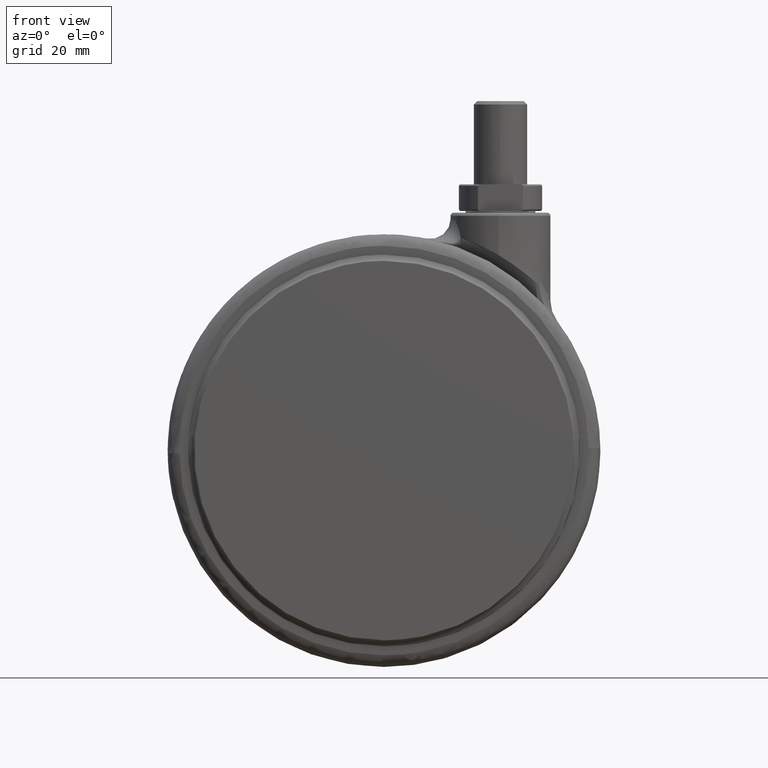
[diagram: clean part render]
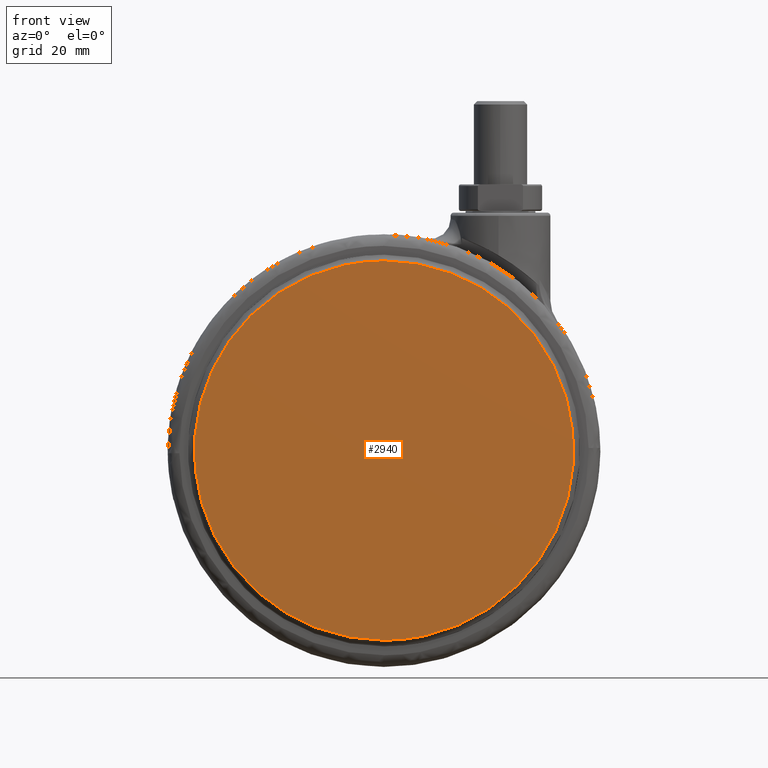
[diagram: same view with one face highlighted and labeled with its STEP entity id]
A machine part, front view. The second image highlights one B-rep face of the part: STEP entity #2940.
In plain terms, the highlighted face is a freeform B-spline surface patch.
Its self-contained STEP definition (entity closure, byte-faithful):
#2869=CARTESIAN_POINT('',(-97.681094386941609,-25.0,-8.805700220954234));
#2870=CARTESIAN_POINT('',(-97.681094386941623,-25.0,-134.194302836764110));
#2871=CARTESIAN_POINT('',(27.681093367726529,-25.0,-8.805700220954234));
#2872=CARTESIAN_POINT('',(27.681093367726529,-25.0,-134.194302836764110));
#2873=B_SPLINE_SURFACE_WITH_KNOTS('',1,1,((#2869,#2871),(#2870,#2872)),.UNSPECIFIED.,.F.,.F.,.U.,(2,2),(2,2),(0.0,125.388602615809900),(0.0,125.362187754668200),.UNSPECIFIED.);
#2874=CARTESIAN_POINT('',(-91.838057314910145,-24.999999999281521,-67.206372084830178));
#2875=VERTEX_POINT('',#2874);
#2876=CARTESIAN_POINT('',(-35.0,-24.999999999999989,-14.500000000000110));
#2877=VERTEX_POINT('',#2876);
#2878=CARTESIAN_POINT('',(-91.838057314910145,-24.999999999281521,-67.206372084830193));
#2879=CARTESIAN_POINT('',(-87.856542794829352,-24.999999999640746,-14.499999999997772));
#2880=CARTESIAN_POINT('',(-35.0,-24.999999999999989,-14.500000000000110));
#2888=(BOUNDED_CURVE()B_SPLINE_CURVE(2,(#2878,#2879,#2880),.UNSPECIFIED.,.F.,.U.)B_SPLINE_CURVE_WITH_KNOTS((3,3),(0.763129840737874,1.0),.UNSPECIFIED.)CURVE()GEOMETRIC_REPRESENTATION_ITEM()RATIONAL_B_SPLINE_CURVE((0.970850634526754,0.722489346451443,1.0))REPRESENTATION_ITEM(''));
#2889=EDGE_CURVE('',#2875,#2877,#2888,.T.);
#2890=ORIENTED_EDGE('',*,*,#2889,.F.);
#2891=CARTESIAN_POINT('',(-35.0,-25.0,-128.500000000000000));
#2892=VERTEX_POINT('',#2891);
#2893=CARTESIAN_POINT('',(-35.0,-25.0,-128.500000000000000));
#2894=CARTESIAN_POINT('',(-92.000000000028137,-24.999999999666873,-128.499999999997900));
#2895=CARTESIAN_POINT('',(-92.000000000058463,-24.999999999307640,-71.499999999995623));
#2896=CARTESIAN_POINT('',(-92.000000000059615,-24.999999999294094,-69.350132047773400));
#2897=CARTESIAN_POINT('',(-91.838057314910145,-24.999999999281521,-67.206372084830193));
#2905=(BOUNDED_CURVE()B_SPLINE_CURVE(2,(#2893,#2894,#2895,#2896,#2897),.UNSPECIFIED.,.F.,.U.)B_SPLINE_CURVE_WITH_KNOTS((3,2,3),(0.500000000000000,0.750000000000000,0.763129840737874),.UNSPECIFIED.)CURVE()GEOMETRIC_REPRESENTATION_ITEM()RATIONAL_B_SPLINE_CURVE((1.0,0.707106781186547,1.0,0.984617434735105,0.970850634526754))REPRESENTATION_ITEM(''));
#2906=EDGE_CURVE('',#2892,#2875,#2905,.T.);
#2907=ORIENTED_EDGE('',*,*,#2906,.F.);
#2908=CARTESIAN_POINT('',(21.838057314910149,-24.999999999281521,-75.793627915169822));
#2909=VERTEX_POINT('',#2908);
#2910=CARTESIAN_POINT('',(21.838057314910149,-24.999999999281521,-75.793627915169822));
#2911=CARTESIAN_POINT('',(17.856542794829359,-24.999999999640764,-128.500000000002300));
#2912=CARTESIAN_POINT('',(-35.0,-25.0,-128.500000000000000));
#2920=(BOUNDED_CURVE()B_SPLINE_CURVE(2,(#2910,#2911,#2912),.UNSPECIFIED.,.F.,.U.)B_SPLINE_CURVE_WITH_KNOTS((3,3),(0.263129840737873,0.500000000000000),.UNSPECIFIED.)CURVE()GEOMETRIC_REPRESENTATION_ITEM()RATIONAL_B_SPLINE_CURVE((0.970850634526754,0.722489346451443,1.0))REPRESENTATION_ITEM(''));
#2921=EDGE_CURVE('',#2909,#2892,#2920,.T.);
#2922=ORIENTED_EDGE('',*,*,#2921,.F.);
#2923=CARTESIAN_POINT('',(-35.0,-24.999999999999989,-14.500000000000110));
#2924=CARTESIAN_POINT('',(22.000000000028137,-24.999999999666873,-14.500000000002181));
#2925=CARTESIAN_POINT('',(22.000000000058471,-24.999999999307629,-71.500000000004434));
#2926=CARTESIAN_POINT('',(22.000000000059618,-24.999999999294079,-73.649867952226629));
#2927=CARTESIAN_POINT('',(21.838057314910149,-24.999999999281521,-75.793627915169822));
#2935=(BOUNDED_CURVE()B_SPLINE_CURVE(2,(#2923,#2924,#2925,#2926,#2927),.UNSPECIFIED.,.F.,.U.)B_SPLINE_CURVE_WITH_KNOTS((3,2,3),(0.0,0.250000000000000,0.263129840737873),.UNSPECIFIED.)CURVE()GEOMETRIC_REPRESENTATION_ITEM()RATIONAL_B_SPLINE_CURVE((1.0,0.707106781186547,1.0,0.984617434735105,0.970850634526754))REPRESENTATION_ITEM(''));
#2936=EDGE_CURVE('',#2877,#2909,#2935,.T.);
#2937=ORIENTED_EDGE('',*,*,#2936,.F.);
#2938=EDGE_LOOP('',(#2890,#2907,#2922,#2937));
#2939=FACE_OUTER_BOUND('',#2938,.T.);
#2940=ADVANCED_FACE('',(#2939),#2873,.T.);